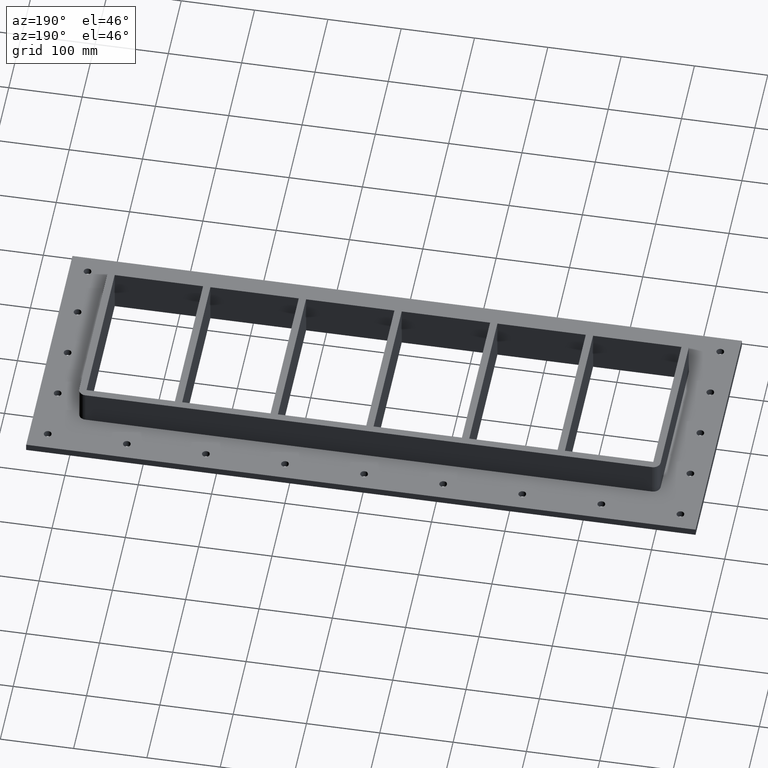
[diagram: clean part render]
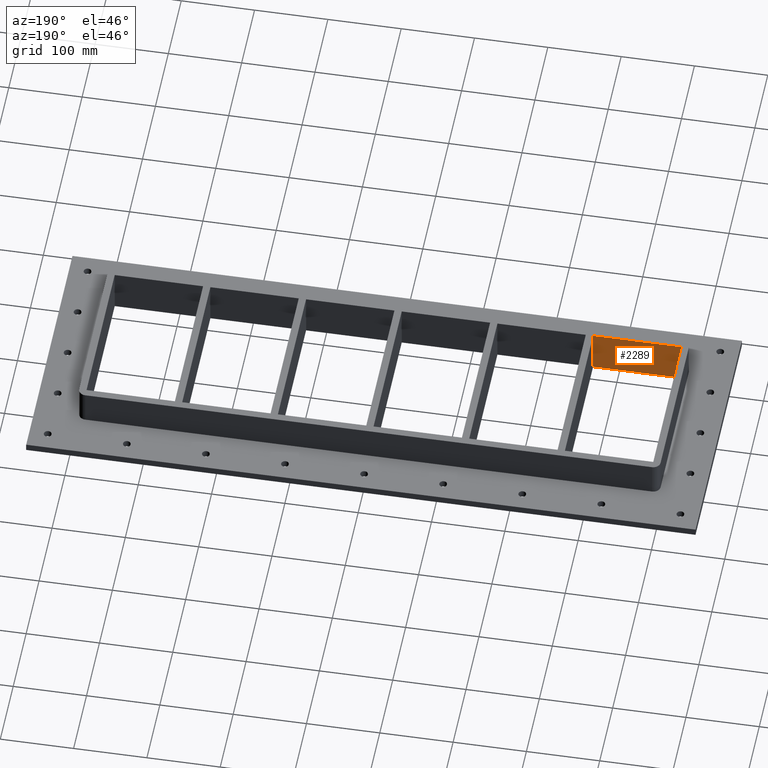
[diagram: same view with one face highlighted and labeled with its STEP entity id]
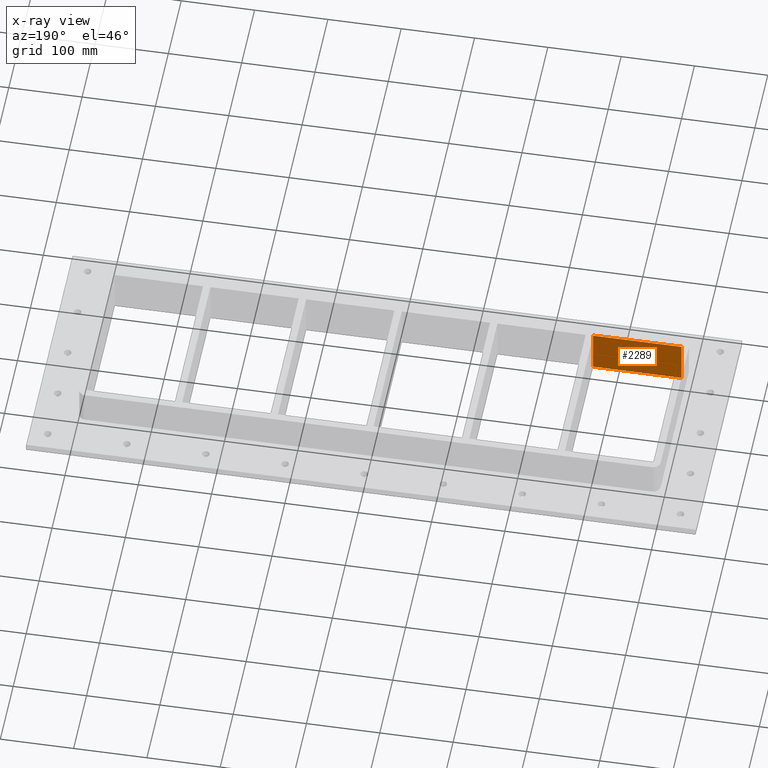
[diagram: x-ray of the same camera — body ghosted, the highlighted face saturated]
A machine part, auxiliary view. The second image highlights one B-rep face of the part: STEP entity #2289.
The next image is the same camera in x-ray: the body ghosted, the highlighted face saturated — about 0% of this face is hidden behind the body in this view.
In plain terms, the highlighted planar face has unit normal (0, -1, 0).
Its self-contained STEP definition (entity closure, byte-faithful):
#1612=CARTESIAN_POINT('',(-266.00000000000006,-109.00000000000051,-30.0));
#1613=VERTEX_POINT('',#1612);
#1630=CARTESIAN_POINT('',(-386.50000000000006,-109.00000000000034,-30.0));
#1631=VERTEX_POINT('',#1630);
#1638=CARTESIAN_POINT('',(-386.50000000000006,-109.00000000000034,-30.0));
#1639=DIRECTION('',(1.0,0.0,0.0));
#1640=VECTOR('',#1639,120.50000000000006);
#1641=LINE('',#1638,#1640);
#1642=EDGE_CURVE('',#1631,#1613,#1641,.T.);
#2249=CARTESIAN_POINT('',(-386.50000000000006,-109.00000000000034,30.0));
#2250=VERTEX_POINT('',#2249);
#2257=CARTESIAN_POINT('',(-386.50000000000006,-109.00000000000034,30.0));
#2258=DIRECTION('',(0.0,0.0,-1.0));
#2259=VECTOR('',#2258,60.0);
#2260=LINE('',#2257,#2259);
#2261=EDGE_CURVE('',#2250,#1631,#2260,.T.);
#2266=CARTESIAN_POINT('',(-266.00000000000006,-109.00000000000051,30.0));
#2267=DIRECTION('',(0.0,-1.0,0.0));
#2268=DIRECTION('',(-1.0,0.0,0.0));
#2269=AXIS2_PLACEMENT_3D('',#2266,#2267,#2268);
#2270=PLANE('',#2269);
#2271=ORIENTED_EDGE('',*,*,#1642,.F.);
#2272=ORIENTED_EDGE('',*,*,#2261,.F.);
#2273=CARTESIAN_POINT('',(-266.00000000000006,-109.00000000000051,30.0));
#2274=VERTEX_POINT('',#2273);
#2275=CARTESIAN_POINT('',(-266.0,-109.00000000000051,30.0));
#2276=DIRECTION('',(-1.0,0.0,0.0));
#2277=VECTOR('',#2276,120.50000000000006);
#2278=LINE('',#2275,#2277);
#2279=EDGE_CURVE('',#2274,#2250,#2278,.T.);
#2280=ORIENTED_EDGE('',*,*,#2279,.F.);
#2281=CARTESIAN_POINT('',(-266.00000000000006,-109.00000000000051,30.0));
#2282=DIRECTION('',(0.0,0.0,-1.0));
#2283=VECTOR('',#2282,60.0);
#2284=LINE('',#2281,#2283);
#2285=EDGE_CURVE('',#2274,#1613,#2284,.T.);
#2286=ORIENTED_EDGE('',*,*,#2285,.T.);
#2287=EDGE_LOOP('',(#2271,#2272,#2280,#2286));
#2288=FACE_OUTER_BOUND('',#2287,.T.);
#2289=ADVANCED_FACE('',(#2288),#2270,.F.);